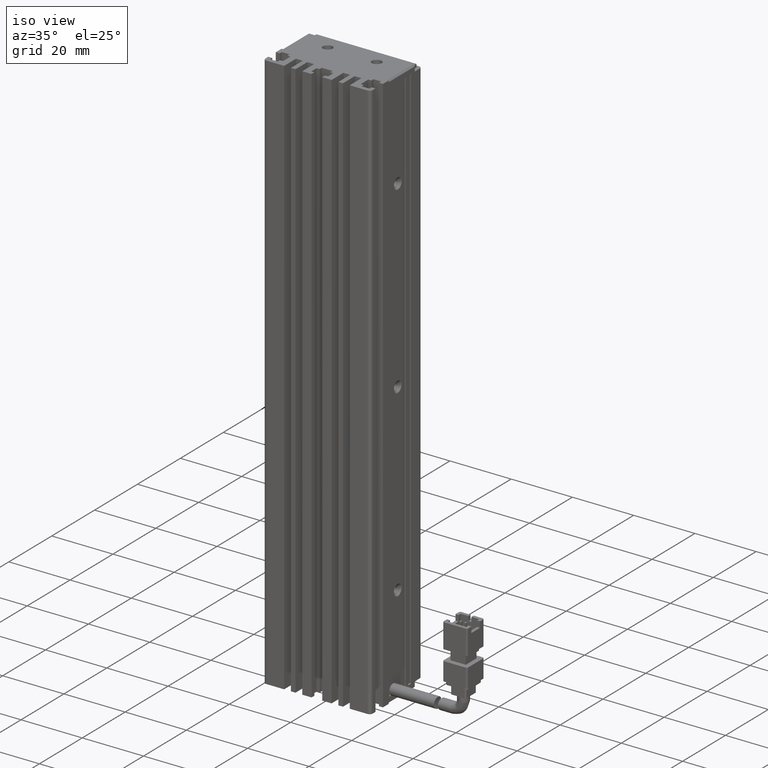
[diagram: clean part render]
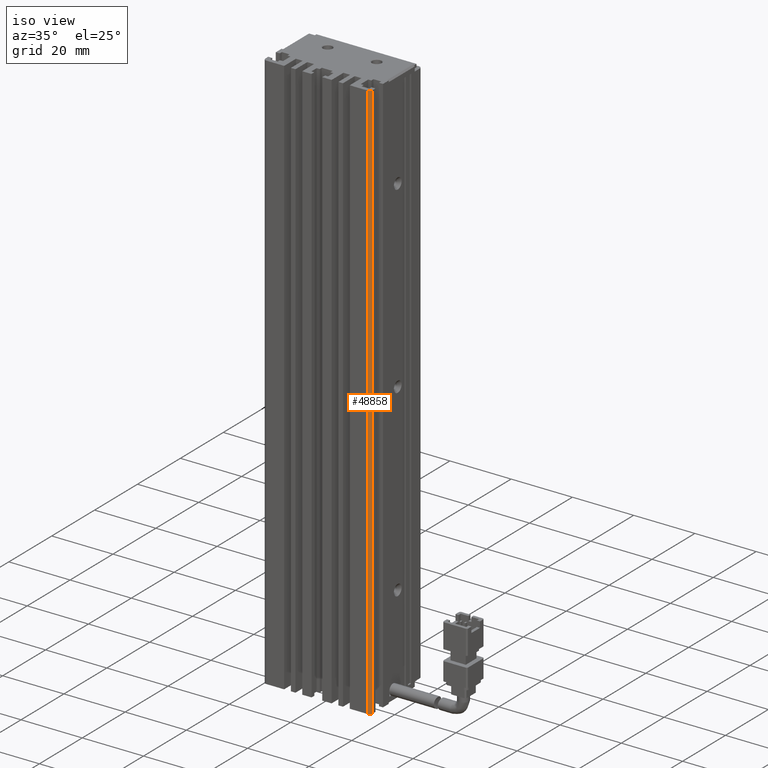
[diagram: same view with one face highlighted and labeled with its STEP entity id]
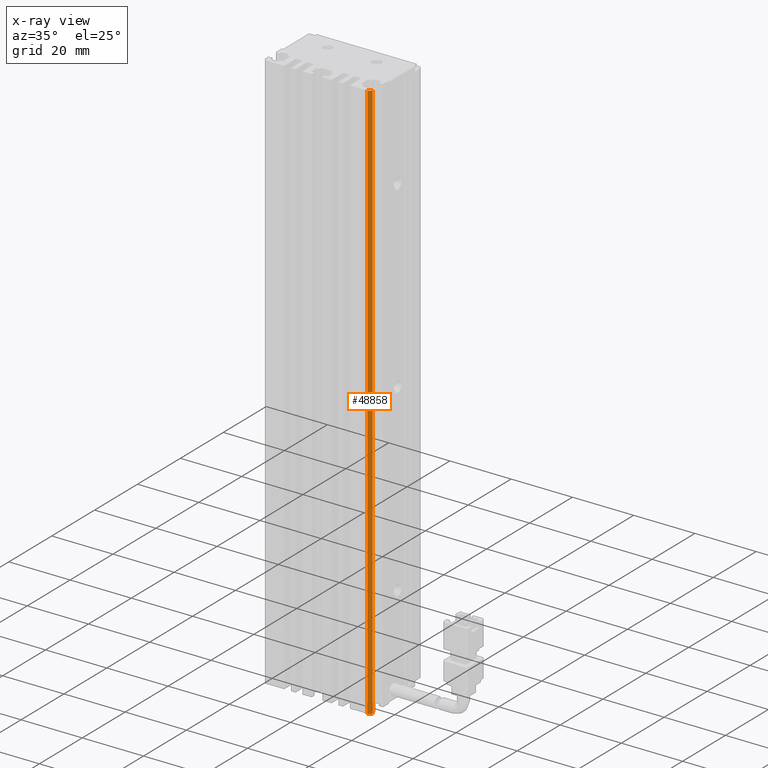
[diagram: x-ray of the same camera — body ghosted, the highlighted face saturated]
A machine part, iso view. The second image highlights one B-rep face of the part: STEP entity #48858.
The next image is the same camera in x-ray: the body ghosted, the highlighted face saturated — about 0% of this face is hidden behind the body in this view.
In plain terms, the highlighted cylindrical surface (edge-blend (fillet) strip) has radius 1 mm, axis along (-0, -0, -1).
Its self-contained STEP definition (entity closure, byte-faithful):
#2094 = CARTESIAN_POINT ( 'NONE',  ( 57.42537974683542500, 11.99073232304837700, -23.00000000000000700 ) ) ;
#3190 = CARTESIAN_POINT ( 'NONE',  ( 58.42537974683542500, 11.99073232304837700, -23.00000000000000700 ) ) ;
#5143 = CARTESIAN_POINT ( 'NONE',  ( 57.42537974683542500, 10.99073232304837500, -23.00000000000000700 ) ) ;
#7637 = DIRECTION ( 'NONE',  ( -1.000000000000000000, 0.0000000000000000000, 0.0000000000000000000 ) ) ;
#7919 = DIRECTION ( 'NONE',  ( -0.0000000000000000000, -0.0000000000000000000, -1.000000000000000000 ) ) ;
#10377 = DIRECTION ( 'NONE',  ( 0.0000000000000000000, 0.0000000000000000000, 1.000000000000000000 ) ) ;
#13096 = ORIENTED_EDGE ( 'NONE', *, *, #53434, .T. ) ;
#17430 = EDGE_LOOP ( 'NONE', ( #39389, #32480, #13096, #38725 ) ) ;
#19078 = AXIS2_PLACEMENT_3D ( 'NONE', #62638, #7919, #7637 ) ;
#20126 = LINE ( 'NONE', #3190, #73348 ) ;
#20324 = DIRECTION ( 'NONE',  ( -1.000000000000000000, 0.0000000000000000000, 0.0000000000000000000 ) ) ;
#20359 = EDGE_CURVE ( 'NONE', #48296, #61970, #75473, .T. ) ;
#27235 = AXIS2_PLACEMENT_3D ( 'NONE', #73753, #55915, #20324 ) ;
#28980 = CIRCLE ( 'NONE', #27235, 1.000000000000000900 ) ;
#29357 = CYLINDRICAL_SURFACE ( 'NONE', #19078, 1.000000000000000900 ) ;
#32480 = ORIENTED_EDGE ( 'NONE', *, *, #41402, .T. ) ;
#32824 = EDGE_CURVE ( 'NONE', #65062, #48296, #20126, .T. ) ;
#35614 = CARTESIAN_POINT ( 'NONE',  ( 57.42537974683542500, 10.99073232304837200, -23.00000000000000700 ) ) ;
#38725 = ORIENTED_EDGE ( 'NONE', *, *, #32824, .T. ) ;
#39389 = ORIENTED_EDGE ( 'NONE', *, *, #20359, .T. ) ;
#40197 = CARTESIAN_POINT ( 'NONE',  ( 57.42537974683542500, 10.99073232304837200, -207.0000000000000300 ) ) ;
#41402 = EDGE_CURVE ( 'NONE', #61970, #68121, #77633, .T. ) ;
#48296 = VERTEX_POINT ( 'NONE', #67510 ) ;
#48858 = ADVANCED_FACE ( 'NONE', ( #51227 ), #29357, .T. ) ;
#51227 = FACE_OUTER_BOUND ( 'NONE', #17430, .T. ) ;
#53434 = EDGE_CURVE ( 'NONE', #68121, #65062, #28980, .T. ) ;
#55915 = DIRECTION ( 'NONE',  ( 0.0000000000000000000, 0.0000000000000000000, 1.000000000000000000 ) ) ;
#56270 = AXIS2_PLACEMENT_3D ( 'NONE', #2094, #71165, #71431 ) ;
#61970 = VERTEX_POINT ( 'NONE', #35614 ) ;
#62638 = CARTESIAN_POINT ( 'NONE',  ( 57.42537974683542500, 11.99073232304837700, -23.00000000000000700 ) ) ;
#65062 = VERTEX_POINT ( 'NONE', #69850 ) ;
#67510 = CARTESIAN_POINT ( 'NONE',  ( 58.42537974683542500, 11.99073232304837500, -23.00000000000000700 ) ) ;
#68121 = VERTEX_POINT ( 'NONE', #40197 ) ;
#69850 = CARTESIAN_POINT ( 'NONE',  ( 58.42537974683542500, 11.99073232304837500, -207.0000000000000300 ) ) ;
#69973 = VECTOR ( 'NONE', #78275, 1000.000000000000000 ) ;
#71165 = DIRECTION ( 'NONE',  ( -0.0000000000000000000, -0.0000000000000000000, -1.000000000000000000 ) ) ;
#71431 = DIRECTION ( 'NONE',  ( -1.000000000000000000, 0.0000000000000000000, 0.0000000000000000000 ) ) ;
#73348 = VECTOR ( 'NONE', #10377, 1000.000000000000000 ) ;
#73753 = CARTESIAN_POINT ( 'NONE',  ( 57.42537974683542500, 11.99073232304837700, -207.0000000000000300 ) ) ;
#75473 = CIRCLE ( 'NONE', #56270, 1.000000000000000900 ) ;
#77633 = LINE ( 'NONE', #5143, #69973 ) ;
#78275 = DIRECTION ( 'NONE',  ( -0.0000000000000000000, -0.0000000000000000000, -1.000000000000000000 ) ) ;